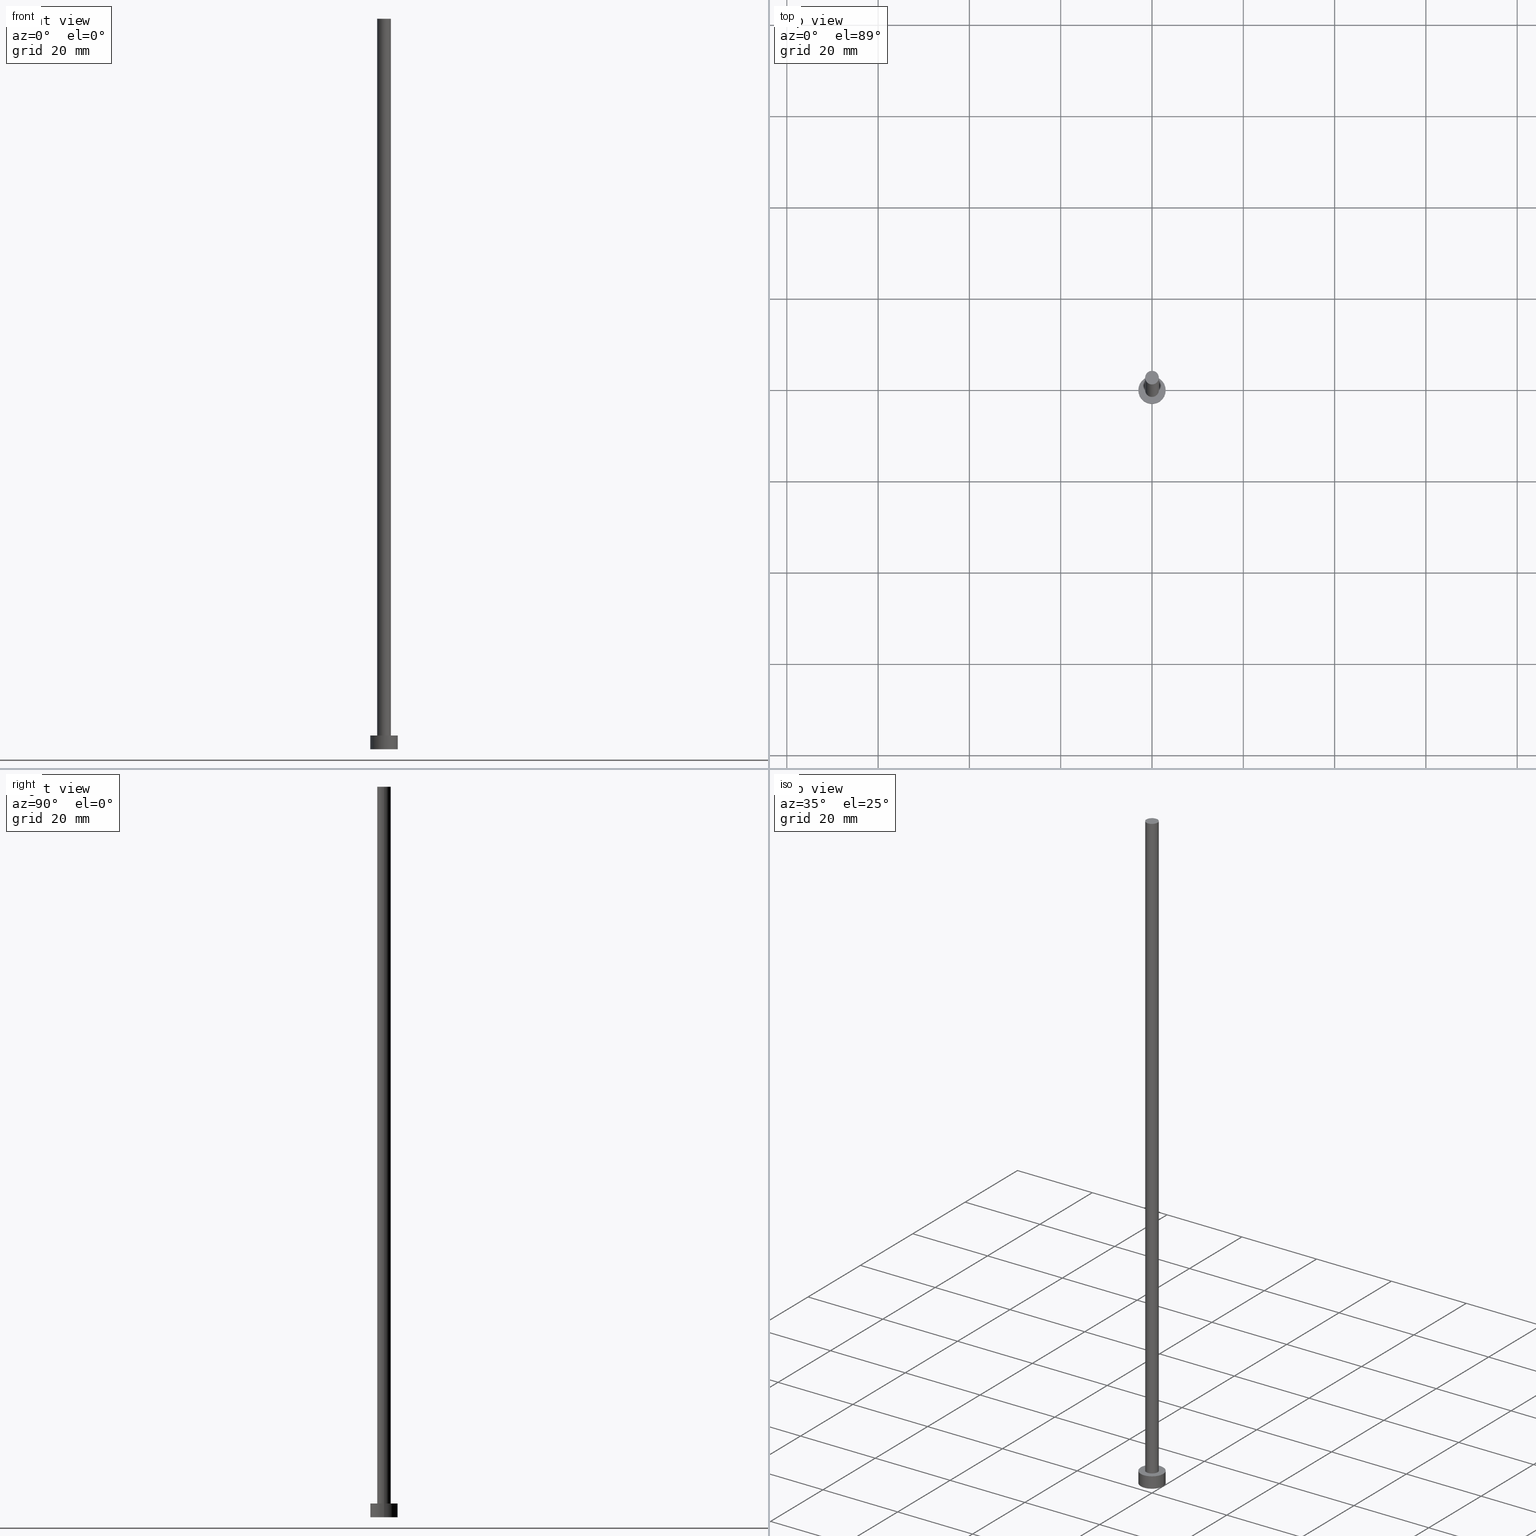
[diagram: canonical four-view strip — front | top / right | iso, engineering-drawing reading convention]
A machine part, canonical four-view strip (front | top / right | iso — engineering-drawing reading convention). The complete STEP part file that produces these views, byte-faithful:
ISO-10303-21;
HEADER;
FILE_DESCRIPTION (( 'STEP AP203' ),
    '1' );
FILE_NAME ('d4af.STEP',
    '2023-02-13T16:38:56',
    ( '' ),
    ( '' ),
    'SwSTEP 2.0',
    'SolidWorks 2019',
    '' );
FILE_SCHEMA (( 'CONFIG_CONTROL_DESIGN' ));
ENDSEC;

DATA;
#1 = APPROVAL_ROLE ( '' ) ;
#2 = EDGE_LOOP ( 'NONE', ( #47, #221 ) ) ;
#3 = PERSON_AND_ORGANIZATION ( #69, #111 ) ;
#4 = VERTEX_POINT ( 'NONE', #164 ) ;
#5 = PERSON_AND_ORGANIZATION ( #69, #111 ) ;
#6 = COORDINATED_UNIVERSAL_TIME_OFFSET ( 1, 0, .AHEAD. ) ;
#7 = CARTESIAN_POINT ( 'NONE',  ( 0.000000000000000000, 0.000000000000000000, 160.0000000000000000 ) ) ;
#8 = ORIENTED_EDGE ( 'NONE', *, *, #126, .T. ) ;
#9 = DIRECTION ( 'NONE',  ( -0.000000000000000000, -0.000000000000000000, -1.000000000000000000 ) ) ;
#10 = CARTESIAN_POINT ( 'NONE',  ( 1.500000000000000222, 1.836970198721030181E-16, 3.000000000000000000 ) ) ;
#11 = VECTOR ( 'NONE', #73, 1000.000000000000000 ) ;
#12 = DIRECTION ( 'NONE',  ( 1.000000000000000000, 0.000000000000000000, 0.000000000000000000 ) ) ;
#13 = CIRCLE ( 'NONE', #98, 3.000000000000000444 ) ;
#14 = DIRECTION ( 'NONE',  ( 0.000000000000000000, 0.000000000000000000, 1.000000000000000000 ) ) ;
#15 = EDGE_CURVE ( 'NONE', #68, #62, #43, .T. ) ;
#16 = DIRECTION ( 'NONE',  ( -1.000000000000000000, 0.000000000000000000, 0.000000000000000000 ) ) ;
#17 = LOCAL_TIME ( 17, 38, 56.00000000000000000, #180 ) ;
#18 = PRODUCT_RELATED_PRODUCT_CATEGORY ( 'detail', '', ( #155 ) ) ;
#19 = CIRCLE ( 'NONE', #54, 1.500000000000000222 ) ;
#20 = SECURITY_CLASSIFICATION_LEVEL ( 'unclassified' ) ;
#21 = ORIENTED_EDGE ( 'NONE', *, *, #123, .T. ) ;
#22 = CARTESIAN_POINT ( 'NONE',  ( 0.000000000000000000, 0.000000000000000000, 0.000000000000000000 ) ) ;
#23 = PRODUCT_DEFINITION ( 'NEZN�M�', '', #231, #251 ) ;
#24 = VERTEX_POINT ( 'NONE', #181 ) ;
#25 = APPLICATION_PROTOCOL_DEFINITION ( 'international standard', 'config_control_design', 1994, #226 ) ;
#26 = CLOSED_SHELL ( 'NONE', ( #244, #252, #153, #205, #213, #59, #28 ) ) ;
#27 = ORIENTED_EDGE ( 'NONE', *, *, #211, .F. ) ;
#28 = ADVANCED_FACE ( 'NONE', ( #242 ), #144, .T. ) ;
#29 = APPROVAL_ROLE ( '' ) ;
#30 = ORIENTED_EDGE ( 'NONE', *, *, #74, .T. ) ;
#31 = DATE_TIME_ROLE ( 'creation_date' ) ;
#32 = ORIENTED_EDGE ( 'NONE', *, *, #40, .F. ) ;
#33 = DIRECTION ( 'NONE',  ( 0.000000000000000000, 0.000000000000000000, 1.000000000000000000 ) ) ;
#34 = APPROVAL ( #48, 'NEUR�EN�' ) ;
#35 = EDGE_CURVE ( 'NONE', #24, #220, #134, .T. ) ;
#36 = CARTESIAN_POINT ( 'NONE',  ( -3.000000000000000444, 0.000000000000000000, 3.000000000000000000 ) ) ;
#37 = DIRECTION ( 'NONE',  ( -0.000000000000000000, -0.000000000000000000, -1.000000000000000000 ) ) ;
#38 = CARTESIAN_POINT ( 'NONE',  ( -3.000000000000000444, 0.000000000000000000, 0.000000000000000000 ) ) ;
#39 = CARTESIAN_POINT ( 'NONE',  ( -1.500000000000000222, 0.000000000000000000, 3.000000000000000000 ) ) ;
#40 = EDGE_CURVE ( 'NONE', #202, #163, #13, .T. ) ;
#41 = AXIS2_PLACEMENT_3D ( 'NONE', #89, #9, #16 ) ;
#42 =( NAMED_UNIT ( * ) SI_UNIT ( $, .STERADIAN. ) SOLID_ANGLE_UNIT ( ) );
#43 = CIRCLE ( 'NONE', #102, 1.500000000000000222 ) ;
#44 = APPLICATION_CONTEXT ( 'configuration controlled 3d designs of mechanical parts and assemblies' ) ;
#45 = DATE_AND_TIME ( #46, #118 ) ;
#46 = CALENDAR_DATE ( 2023, 13, 2 ) ;
#47 = ORIENTED_EDGE ( 'NONE', *, *, #116, .F. ) ;
#48 = APPROVAL_STATUS ( 'not_yet_approved' ) ;
#49 = APPROVAL_STATUS ( 'not_yet_approved' ) ;
#50 = EDGE_LOOP ( 'NONE', ( #176, #200, #30, #219 ) ) ;
#51 = EDGE_LOOP ( 'NONE', ( #32, #81 ) ) ;
#52 = DIRECTION ( 'NONE',  ( 1.000000000000000000, 0.000000000000000000, -0.000000000000000000 ) ) ;
#53 = FACE_OUTER_BOUND ( 'NONE', #158, .T. ) ;
#54 = AXIS2_PLACEMENT_3D ( 'NONE', #167, #223, #191 ) ;
#55 = CYLINDRICAL_SURFACE ( 'NONE', #41, 3.000000000000000444 ) ;
#56 = DIRECTION ( 'NONE',  ( 1.000000000000000000, 0.000000000000000000, 0.000000000000000000 ) ) ;
#57 = FACE_OUTER_BOUND ( 'NONE', #50, .T. ) ;
#58 = CC_DESIGN_DATE_AND_TIME_ASSIGNMENT ( #142, #31, ( #23 ) ) ;
#59 = ADVANCED_FACE ( 'NONE', ( #75 ), #171, .T. ) ;
#60 = APPROVAL_PERSON_ORGANIZATION ( #197, #34, #29 ) ;
#61 = CALENDAR_DATE ( 2023, 13, 2 ) ;
#62 = VERTEX_POINT ( 'NONE', #39 ) ;
#63 = SHAPE_DEFINITION_REPRESENTATION ( #174, #88 ) ;
#64 = ORIENTED_EDGE ( 'NONE', *, *, #190, .F. ) ;
#65 = CALENDAR_DATE ( 2023, 13, 2 ) ;
#66 = APPROVAL_PERSON_ORGANIZATION ( #3, #253, #1 ) ;
#67 = ORIENTED_EDGE ( 'NONE', *, *, #166, .T. ) ;
#68 = VERTEX_POINT ( 'NONE', #10 ) ;
#69 = PERSON ( 'NEUR�EN�', 'NEUR�EN�', 'NEUR�EN�', ('NEUR�EN�'), ('NEUR�EN�'), ('NEUR�EN�') ) ;
#70 = EDGE_LOOP ( 'NONE', ( #198, #120, #67, #86 ) ) ;
#71 = CARTESIAN_POINT ( 'NONE',  ( 0.000000000000000000, 0.000000000000000000, 3.000000000000000000 ) ) ;
#72 = CC_DESIGN_APPROVAL ( #230, ( #23 ) ) ;
#73 = DIRECTION ( 'NONE',  ( -0.000000000000000000, -0.000000000000000000, -1.000000000000000000 ) ) ;
#74 = EDGE_CURVE ( 'NONE', #163, #202, #109, .T. ) ;
#75 = FACE_OUTER_BOUND ( 'NONE', #122, .T. ) ;
#76 = CARTESIAN_POINT ( 'NONE',  ( -1.500000000000000222, 0.000000000000000000, 160.0000000000000000 ) ) ;
#77 = CARTESIAN_POINT ( 'NONE',  ( -3.000000000000000444, 0.000000000000000000, 3.000000000000000000 ) ) ;
#78 = PERSON_AND_ORGANIZATION ( #69, #111 ) ;
#79 = ORIENTED_EDGE ( 'NONE', *, *, #35, .T. ) ;
#80 = COORDINATED_UNIVERSAL_TIME_OFFSET ( 1, 0, .AHEAD. ) ;
#81 = ORIENTED_EDGE ( 'NONE', *, *, #74, .F. ) ;
#82 = PERSON_AND_ORGANIZATION ( #69, #111 ) ;
#83 = DIRECTION ( 'NONE',  ( 1.000000000000000000, 0.000000000000000000, 0.000000000000000000 ) ) ;
#84 = CC_DESIGN_PERSON_AND_ORGANIZATION_ASSIGNMENT ( #237, #182, ( #119 ) ) ;
#85 = DATE_AND_TIME ( #61, #154 ) ;
#86 = ORIENTED_EDGE ( 'NONE', *, *, #40, .T. ) ;
#87 = CYLINDRICAL_SURFACE ( 'NONE', #130, 1.500000000000000222 ) ;
#88 = ADVANCED_BREP_SHAPE_REPRESENTATION ( 'd4af', ( #145, #222 ), #204 ) ;
#89 = CARTESIAN_POINT ( 'NONE',  ( 0.000000000000000000, 0.000000000000000000, 3.000000000000000000 ) ) ;
#90 = APPROVAL_PERSON_ORGANIZATION ( #178, #230, #201 ) ;
#91 = AXIS2_PLACEMENT_3D ( 'NONE', #236, #161, #83 ) ;
#92 = DIRECTION ( 'NONE',  ( -0.000000000000000000, -0.000000000000000000, -1.000000000000000000 ) ) ;
#93 = DIRECTION ( 'NONE',  ( 1.000000000000000000, 0.000000000000000000, 0.000000000000000000 ) ) ;
#94 = LINE ( 'NONE', #77, #11 ) ;
#95 =( LENGTH_UNIT ( ) NAMED_UNIT ( * ) SI_UNIT ( .MILLI., .METRE. ) );
#96 = CIRCLE ( 'NONE', #235, 1.500000000000000222 ) ;
#97 = EDGE_CURVE ( 'NONE', #24, #163, #227, .T. ) ;
#98 = AXIS2_PLACEMENT_3D ( 'NONE', #137, #214, #179 ) ;
#99 = DIRECTION ( 'NONE',  ( 0.000000000000000000, 0.000000000000000000, 1.000000000000000000 ) ) ;
#100 = ORIENTED_EDGE ( 'NONE', *, *, #107, .T. ) ;
#101 = APPROVAL_DATE_TIME ( #85, #253 ) ;
#102 = AXIS2_PLACEMENT_3D ( 'NONE', #139, #215, #106 ) ;
#103 = APPROVAL_DATE_TIME ( #136, #230 ) ;
#104 = DIRECTION ( 'NONE',  ( 0.000000000000000000, 0.000000000000000000, 1.000000000000000000 ) ) ;
#105 = PERSON_AND_ORGANIZATION_ROLE ( 'design_owner' ) ;
#106 = DIRECTION ( 'NONE',  ( 1.000000000000000000, 0.000000000000000000, 0.000000000000000000 ) ) ;
#107 = EDGE_CURVE ( 'NONE', #4, #143, #96, .T. ) ;
#108 = PERSON_AND_ORGANIZATION ( #69, #111 ) ;
#109 = CIRCLE ( 'NONE', #173, 3.000000000000000444 ) ;
#110 = LINE ( 'NONE', #127, #193 ) ;
#111 = ORGANIZATION ( 'NEUR�EN�', 'NEUR�EN�', '' ) ;
#112 = CARTESIAN_POINT ( 'NONE',  ( 0.000000000000000000, 0.000000000000000000, 0.000000000000000000 ) ) ;
#113 = CARTESIAN_POINT ( 'NONE',  ( 3.000000000000000444, 3.673940397442060361E-16, 3.000000000000000000 ) ) ;
#114 = CC_DESIGN_APPROVAL ( #34, ( #231 ) ) ;
#115 = DIRECTION ( 'NONE',  ( -0.000000000000000000, -0.000000000000000000, -1.000000000000000000 ) ) ;
#116 = EDGE_CURVE ( 'NONE', #62, #68, #19, .T. ) ;
#117 = ORIENTED_EDGE ( 'NONE', *, *, #116, .T. ) ;
#118 = LOCAL_TIME ( 17, 38, 56.00000000000000000, #218 ) ;
#119 = SECURITY_CLASSIFICATION ( '', '', #20 ) ;
#120 = ORIENTED_EDGE ( 'NONE', *, *, #126, .F. ) ;
#121 = PERSON_AND_ORGANIZATION_ROLE ( 'creator' ) ;
#122 = EDGE_LOOP ( 'NONE', ( #238, #203, #183, #117 ) ) ;
#123 = EDGE_CURVE ( 'NONE', #143, #68, #110, .T. ) ;
#124 = ORIENTED_EDGE ( 'NONE', *, *, #190, .T. ) ;
#125 = DIRECTION ( 'NONE',  ( 1.000000000000000000, 0.000000000000000000, -0.000000000000000000 ) ) ;
#126 = EDGE_CURVE ( 'NONE', #220, #24, #224, .T. ) ;
#127 = CARTESIAN_POINT ( 'NONE',  ( 1.500000000000000222, 1.836970198721030181E-16, 160.0000000000000000 ) ) ;
#128 = CARTESIAN_POINT ( 'NONE',  ( 0.000000000000000000, 0.000000000000000000, 3.000000000000000000 ) ) ;
#129 = CARTESIAN_POINT ( 'NONE',  ( 0.000000000000000000, 0.000000000000000000, 0.000000000000000000 ) ) ;
#130 = AXIS2_PLACEMENT_3D ( 'NONE', #189, #37, #170 ) ;
#131 = DIRECTION ( 'NONE',  ( 1.000000000000000000, 0.000000000000000000, -0.000000000000000000 ) ) ;
#132 = CC_DESIGN_PERSON_AND_ORGANIZATION_ASSIGNMENT ( #78, #105, ( #155 ) ) ;
#133 = AXIS2_PLACEMENT_3D ( 'NONE', #149, #225, #210 ) ;
#134 = CIRCLE ( 'NONE', #91, 3.000000000000000444 ) ;
#135 = AXIS2_PLACEMENT_3D ( 'NONE', #112, #33, #131 ) ;
#136 = DATE_AND_TIME ( #195, #192 ) ;
#137 = CARTESIAN_POINT ( 'NONE',  ( 0.000000000000000000, 0.000000000000000000, 0.000000000000000000 ) ) ;
#138 = CC_DESIGN_PERSON_AND_ORGANIZATION_ASSIGNMENT ( #108, #121, ( #23 ) ) ;
#139 = CARTESIAN_POINT ( 'NONE',  ( 0.000000000000000000, 0.000000000000000000, 3.000000000000000000 ) ) ;
#140 = PERSON_AND_ORGANIZATION_ROLE ( 'creator' ) ;
#141 = ORIENTED_EDGE ( 'NONE', *, *, #15, .T. ) ;
#142 = DATE_AND_TIME ( #175, #17 ) ;
#143 = VERTEX_POINT ( 'NONE', #184 ) ;
#144 = PLANE ( 'NONE',  #168 ) ;
#145 = MANIFOLD_SOLID_BREP ( 'P�idat vysunut�m3', #26 ) ;
#146 = CARTESIAN_POINT ( 'NONE',  ( 0.000000000000000000, 0.000000000000000000, 3.000000000000000000 ) ) ;
#147 = UNCERTAINTY_MEASURE_WITH_UNIT (LENGTH_MEASURE( 1.000000000000000082E-05 ), #95, 'distance_accuracy_value', 'NONE');
#148 = CC_DESIGN_PERSON_AND_ORGANIZATION_ASSIGNMENT ( #82, #140, ( #231 ) ) ;
#149 = CARTESIAN_POINT ( 'NONE',  ( 0.000000000000000000, 0.000000000000000000, 160.0000000000000000 ) ) ;
#150 = FACE_OUTER_BOUND ( 'NONE', #70, .T. ) ;
#151 = PLANE ( 'NONE',  #135 ) ;
#152 = FACE_BOUND ( 'NONE', #2, .T. ) ;
#153 = ADVANCED_FACE ( 'NONE', ( #150 ), #55, .T. ) ;
#154 = LOCAL_TIME ( 17, 38, 56.00000000000000000, #234 ) ;
#155 = PRODUCT ( 'd4af', 'd4af', '', ( #239 ) ) ;
#156 = AXIS2_PLACEMENT_3D ( 'NONE', #128, #229, #125 ) ;
#157 = PERSON_AND_ORGANIZATION_ROLE ( 'design_supplier' ) ;
#158 = EDGE_LOOP ( 'NONE', ( #8, #79 ) ) ;
#159 = APPLICATION_PROTOCOL_DEFINITION ( 'international standard', 'config_control_design', 1994, #44 ) ;
#160 = APPROVAL_DATE_TIME ( #232, #34 ) ;
#161 = DIRECTION ( 'NONE',  ( 0.000000000000000000, 0.000000000000000000, 1.000000000000000000 ) ) ;
#162 = DATE_TIME_ROLE ( 'classification_date' ) ;
#163 = VERTEX_POINT ( 'NONE', #247 ) ;
#164 = CARTESIAN_POINT ( 'NONE',  ( -1.500000000000000222, 0.000000000000000000, 160.0000000000000000 ) ) ;
#165 = LINE ( 'NONE', #76, #172 ) ;
#166 = EDGE_CURVE ( 'NONE', #220, #202, #94, .T. ) ;
#167 = CARTESIAN_POINT ( 'NONE',  ( 0.000000000000000000, 0.000000000000000000, 3.000000000000000000 ) ) ;
#168 = AXIS2_PLACEMENT_3D ( 'NONE', #7, #104, #52 ) ;
#169 = DIRECTION ( 'NONE',  ( 0.000000000000000000, 0.000000000000000000, 1.000000000000000000 ) ) ;
#170 = DIRECTION ( 'NONE',  ( -1.000000000000000000, 0.000000000000000000, 0.000000000000000000 ) ) ;
#171 = CYLINDRICAL_SURFACE ( 'NONE', #188, 1.500000000000000222 ) ;
#172 = VECTOR ( 'NONE', #208, 1000.000000000000000 ) ;
#173 = AXIS2_PLACEMENT_3D ( 'NONE', #129, #245, #12 ) ;
#174 = PRODUCT_DEFINITION_SHAPE ( 'NONE', 'NONE',  #23 ) ;
#175 = CALENDAR_DATE ( 2023, 13, 2 ) ;
#176 = ORIENTED_EDGE ( 'NONE', *, *, #35, .F. ) ;
#177 = AXIS2_PLACEMENT_3D ( 'NONE', #146, #169, #56 ) ;
#178 = PERSON_AND_ORGANIZATION ( #69, #111 ) ;
#179 = DIRECTION ( 'NONE',  ( 1.000000000000000000, 0.000000000000000000, 0.000000000000000000 ) ) ;
#180 = COORDINATED_UNIVERSAL_TIME_OFFSET ( 1, 0, .AHEAD. ) ;
#181 = CARTESIAN_POINT ( 'NONE',  ( 3.000000000000000444, 3.673940397442060361E-16, 3.000000000000000000 ) ) ;
#182 = PERSON_AND_ORGANIZATION_ROLE ( 'classification_officer' ) ;
#183 = ORIENTED_EDGE ( 'NONE', *, *, #211, .T. ) ;
#184 = CARTESIAN_POINT ( 'NONE',  ( 1.500000000000000222, 1.836970198721030181E-16, 160.0000000000000000 ) ) ;
#185 = DIRECTION ( 'NONE',  ( -0.000000000000000000, -0.000000000000000000, -1.000000000000000000 ) ) ;
#186 = CC_DESIGN_APPROVAL ( #253, ( #119 ) ) ;
#187 = CARTESIAN_POINT ( 'NONE',  ( 0.000000000000000000, 0.000000000000000000, 160.0000000000000000 ) ) ;
#188 = AXIS2_PLACEMENT_3D ( 'NONE', #212, #92, #246 ) ;
#189 = CARTESIAN_POINT ( 'NONE',  ( 0.000000000000000000, 0.000000000000000000, 160.0000000000000000 ) ) ;
#190 = EDGE_CURVE ( 'NONE', #143, #4, #233, .T. ) ;
#191 = DIRECTION ( 'NONE',  ( 1.000000000000000000, 0.000000000000000000, 0.000000000000000000 ) ) ;
#192 = LOCAL_TIME ( 17, 38, 56.00000000000000000, #80 ) ;
#193 = VECTOR ( 'NONE', #250, 1000.000000000000000 ) ;
#194 =( NAMED_UNIT ( * ) PLANE_ANGLE_UNIT ( ) SI_UNIT ( $, .RADIAN. ) );
#195 = CALENDAR_DATE ( 2023, 13, 2 ) ;
#196 = EDGE_LOOP ( 'NONE', ( #100, #124 ) ) ;
#197 = PERSON_AND_ORGANIZATION ( #69, #111 ) ;
#198 = ORIENTED_EDGE ( 'NONE', *, *, #97, .F. ) ;
#199 = DIRECTION ( 'NONE',  ( 1.000000000000000000, 0.000000000000000000, 0.000000000000000000 ) ) ;
#200 = ORIENTED_EDGE ( 'NONE', *, *, #97, .T. ) ;
#201 = APPROVAL_ROLE ( '' ) ;
#202 = VERTEX_POINT ( 'NONE', #38 ) ;
#203 = ORIENTED_EDGE ( 'NONE', *, *, #107, .F. ) ;
#204 =( GEOMETRIC_REPRESENTATION_CONTEXT ( 3 ) GLOBAL_UNCERTAINTY_ASSIGNED_CONTEXT ( ( #147 ) ) GLOBAL_UNIT_ASSIGNED_CONTEXT ( ( #95, #194, #42 ) ) REPRESENTATION_CONTEXT ( 'NONE', 'WORKASPACE' ) );
#205 = ADVANCED_FACE ( 'NONE', ( #152, #53 ), #228, .T. ) ;
#206 = FACE_OUTER_BOUND ( 'NONE', #51, .T. ) ;
#207 = VECTOR ( 'NONE', #185, 1000.000000000000000 ) ;
#208 = DIRECTION ( 'NONE',  ( -0.000000000000000000, -0.000000000000000000, -1.000000000000000000 ) ) ;
#209 = FACE_OUTER_BOUND ( 'NONE', #241, .T. ) ;
#210 = DIRECTION ( 'NONE',  ( 1.000000000000000000, 0.000000000000000000, 0.000000000000000000 ) ) ;
#211 = EDGE_CURVE ( 'NONE', #4, #62, #165, .T. ) ;
#212 = CARTESIAN_POINT ( 'NONE',  ( 0.000000000000000000, 0.000000000000000000, 160.0000000000000000 ) ) ;
#213 = ADVANCED_FACE ( 'NONE', ( #206 ), #151, .F. ) ;
#214 = DIRECTION ( 'NONE',  ( 0.000000000000000000, 0.000000000000000000, 1.000000000000000000 ) ) ;
#215 = DIRECTION ( 'NONE',  ( 0.000000000000000000, 0.000000000000000000, 1.000000000000000000 ) ) ;
#216 = CC_DESIGN_SECURITY_CLASSIFICATION ( #119, ( #231 ) ) ;
#217 = CC_DESIGN_PERSON_AND_ORGANIZATION_ASSIGNMENT ( #5, #157, ( #231 ) ) ;
#218 = COORDINATED_UNIVERSAL_TIME_OFFSET ( 1, 0, .AHEAD. ) ;
#219 = ORIENTED_EDGE ( 'NONE', *, *, #166, .F. ) ;
#220 = VERTEX_POINT ( 'NONE', #36 ) ;
#221 = ORIENTED_EDGE ( 'NONE', *, *, #15, .F. ) ;
#222 = AXIS2_PLACEMENT_3D ( 'NONE', #22, #99, #199 ) ;
#223 = DIRECTION ( 'NONE',  ( 0.000000000000000000, 0.000000000000000000, 1.000000000000000000 ) ) ;
#224 = CIRCLE ( 'NONE', #177, 3.000000000000000444 ) ;
#225 = DIRECTION ( 'NONE',  ( 0.000000000000000000, 0.000000000000000000, 1.000000000000000000 ) ) ;
#226 = APPLICATION_CONTEXT ( 'configuration controlled 3d designs of mechanical parts and assemblies' ) ;
#227 = LINE ( 'NONE', #113, #207 ) ;
#228 = PLANE ( 'NONE',  #156 ) ;
#229 = DIRECTION ( 'NONE',  ( 0.000000000000000000, 0.000000000000000000, 1.000000000000000000 ) ) ;
#230 = APPROVAL ( #49, 'NEUR�EN�' ) ;
#231 = PRODUCT_DEFINITION_FORMATION_WITH_SPECIFIED_SOURCE ( 'LIBOVOLN�', '', #155, .NOT_KNOWN. ) ;
#232 = DATE_AND_TIME ( #65, #254 ) ;
#233 = CIRCLE ( 'NONE', #133, 1.500000000000000222 ) ;
#234 = COORDINATED_UNIVERSAL_TIME_OFFSET ( 1, 0, .AHEAD. ) ;
#235 = AXIS2_PLACEMENT_3D ( 'NONE', #187, #14, #93 ) ;
#236 = CARTESIAN_POINT ( 'NONE',  ( 0.000000000000000000, 0.000000000000000000, 3.000000000000000000 ) ) ;
#237 = PERSON_AND_ORGANIZATION ( #69, #111 ) ;
#238 = ORIENTED_EDGE ( 'NONE', *, *, #123, .F. ) ;
#239 = MECHANICAL_CONTEXT ( 'NONE', #226, 'mechanical' ) ;
#240 = APPROVAL_STATUS ( 'not_yet_approved' ) ;
#241 = EDGE_LOOP ( 'NONE', ( #64, #21, #141, #27 ) ) ;
#242 = FACE_OUTER_BOUND ( 'NONE', #196, .T. ) ;
#243 = CYLINDRICAL_SURFACE ( 'NONE', #249, 3.000000000000000444 ) ;
#244 = ADVANCED_FACE ( 'NONE', ( #209 ), #87, .T. ) ;
#245 = DIRECTION ( 'NONE',  ( 0.000000000000000000, 0.000000000000000000, 1.000000000000000000 ) ) ;
#246 = DIRECTION ( 'NONE',  ( -1.000000000000000000, 0.000000000000000000, 0.000000000000000000 ) ) ;
#247 = CARTESIAN_POINT ( 'NONE',  ( 3.000000000000000444, 3.673940397442060361E-16, 0.000000000000000000 ) ) ;
#248 = CC_DESIGN_DATE_AND_TIME_ASSIGNMENT ( #45, #162, ( #119 ) ) ;
#249 = AXIS2_PLACEMENT_3D ( 'NONE', #71, #115, #255 ) ;
#250 = DIRECTION ( 'NONE',  ( -0.000000000000000000, -0.000000000000000000, -1.000000000000000000 ) ) ;
#251 = DESIGN_CONTEXT ( 'detailed design', #44, 'design' ) ;
#252 = ADVANCED_FACE ( 'NONE', ( #57 ), #243, .T. ) ;
#253 = APPROVAL ( #240, 'NEUR�EN�' ) ;
#254 = LOCAL_TIME ( 17, 38, 56.00000000000000000, #6 ) ;
#255 = DIRECTION ( 'NONE',  ( -1.000000000000000000, 0.000000000000000000, 0.000000000000000000 ) ) ;
ENDSEC;
END-ISO-10303-21;
